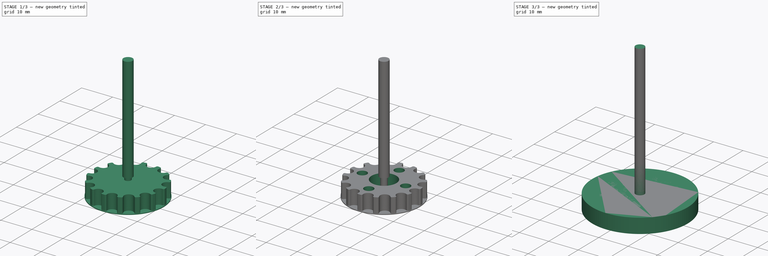
[diagram: build sequence overview — one tinted view per stage of 3, left to right]
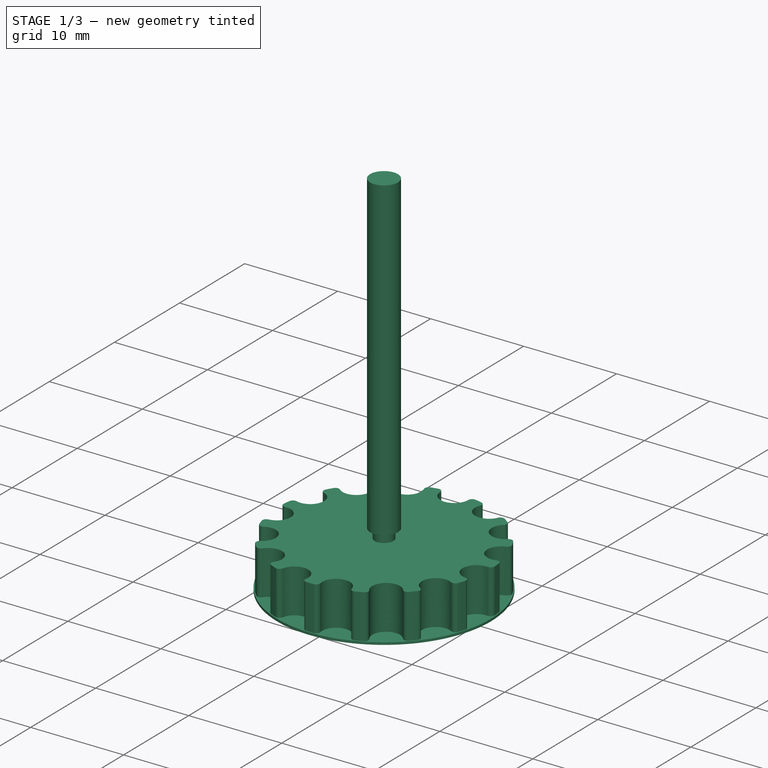
[diagram: stage 1 of 3 — iso view after this stage's code; geometry added in this stage tinted green]
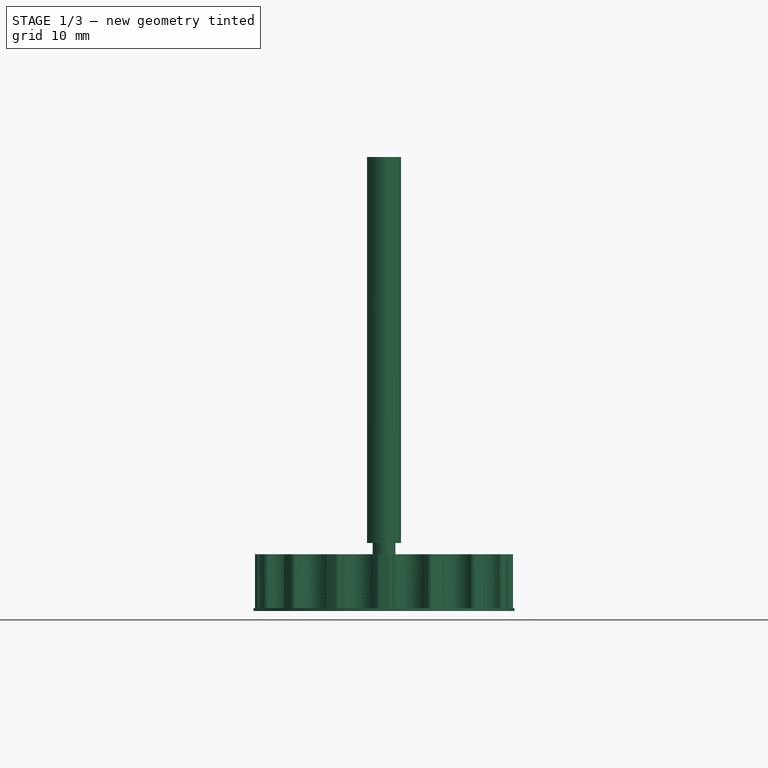
[diagram: stage 1 of 3 — front view after this stage's code; geometry added in this stage tinted green]
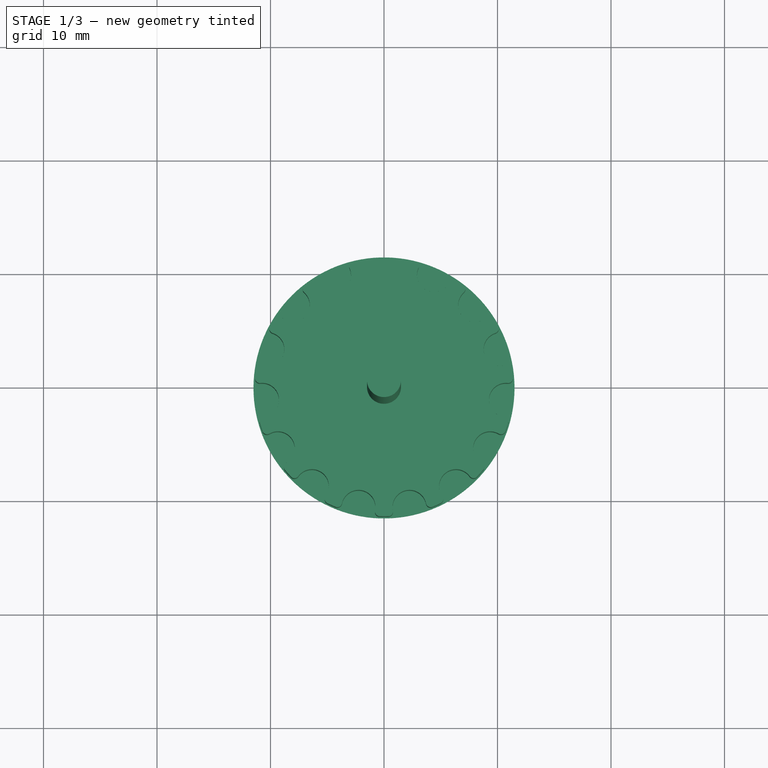
[diagram: stage 1 of 3 — top view after this stage's code; geometry added in this stage tinted green]
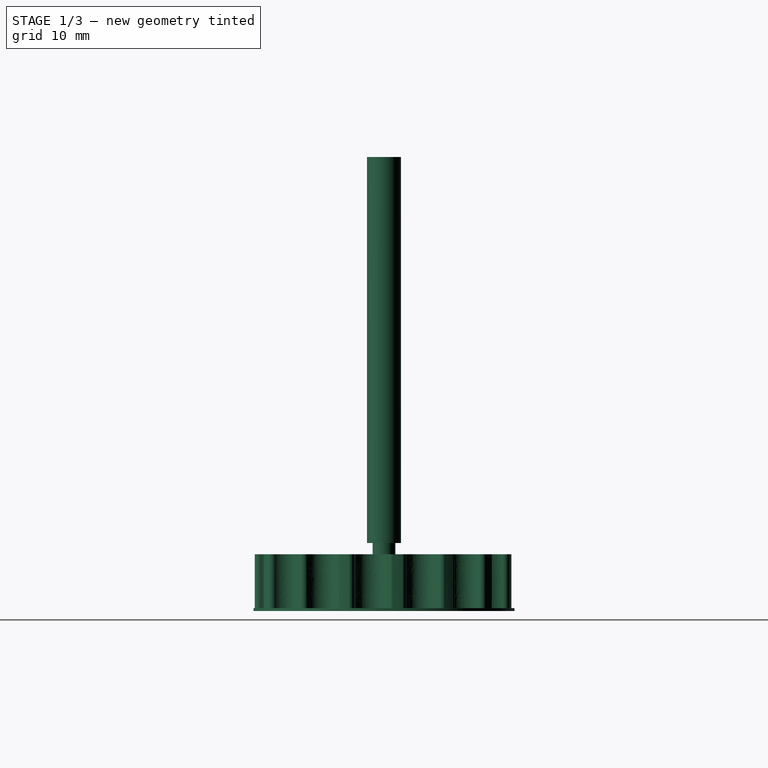
[diagram: stage 1 of 3 — right view after this stage's code; geometry added in this stage tinted green]
FCSTD DOCUMENT  (FreeCAD 0.21R33668 +26 (Git))
Label: hdt5_15t_5mm_pulley
License: All rights reserved
LicenseURL: http://en.wikipedia.org/wiki/All_rights_reserved
objects: Path::FeaturePython×9, Part::FeaturePython×4, Sketcher::SketchObject×3, App::DocumentObjectGroup×3, PartDesign::Pocket×2, PartDesign::FeaturePython×1, PartDesign::Pad×1, PartDesign::Body×1, App::FeaturePython×1
note: 21 computed .brp shape members not serialized (recipe doc carries the construction recipe); baked Part::Feature solids carry a one-line shape summary decoded from their .brp

FEATURE [PartDesign::FeaturePython] TimingGear  # WARN: FeaturePython — macro-defined, semantics opaque (R4)
  AttacherType = Attacher::AttachEngine3D
  h = 2.06
  height = 5
  offset = 0
  pitch = 5
  r0 = 1.49
  r1 = 1.49
  rs = 0.43
  teeth = 15
  type = 5
  u = 0.5715
  version = 1.2.0
FEATURE [Sketcher::SketchObject] Sketch
  FullyConstrained = true
  MapMode = 5
  Placement = pos=(0,0,5) rot=(0,0,1;0rad)
  Support = -> [TimingGear]
  sketch-geometry (1):
    g0: Circle CenterX=0 CenterY=0 CenterZ=0 NormalX=0 NormalY=0 NormalZ=1 AngleXU=0 Radius=4
  constraints (2):
    c: Coincident(g0,g-1)
    c: Diameter(g0) = 8
FEATURE [Sketcher::SketchObject] Sketch001
  FullyConstrained = true
  MapMode = 5
  Placement = pos=(0,0,0) rot=(1,0,0;3.14159rad)
  sketch-geometry (1):
    g0: Circle CenterX=0 CenterY=0 CenterZ=0 NormalX=0 NormalY=0 NormalZ=1 AngleXU=0 Radius=11.5
  constraints (2):
    c: Coincident(g0,g-1)
    c: Diameter(g0) = 23
FEATURE [PartDesign::Pad] Pad  label="Pad_23mm"
  BaseFeature = -> TimingGear
  Direction = (0,0,-1)
  Length = 0.25
  Length2 = 10
  Profile = -> Sketch001
  ReferenceAxis = -> Sketch001 [N_Axis]
  Reversed = true
  Type = 0
FEATURE [Path::FeaturePython] _mm_Endmill  label="3mm Endmill001"  # Path/CAM operation (typed FeaturePython)
  HorizFeed = 7
  HorizRapid = 7
  SpindleDir = 0
  SpindleSpeed = 8000
  Tool = -> ToolBit001
  ToolNumber = 2
  VertFeed = 7
  VertRapid = 7
  expr: HorizRapid = SetupSheet.HorizRapid
  expr: VertRapid = SetupSheet.VertRapid
FEATURE [Part::FeaturePython] ToolBit004  label="2mm Endmill"  # Path/CAM toolbit (typed FeaturePython)
  BitPropertyNames = Chipload | CuttingEdgeHeight | Diameter | Flutes | Length | Material | ShankDiameter | SpindleDirection
  BitShape = C:/Program Files/FreeCAD 0.21/Mod\Path\Tools\Shape\endmill.fcstd
  Chipload = 0
  CuttingEdgeHeight = 6
  Diameter = 2
  File = <path>
  Flutes = 0
  Length = 40
  Material = 0
  ShankDiameter = 3
  ShapeName = endmill
  SpindleDirection = 0
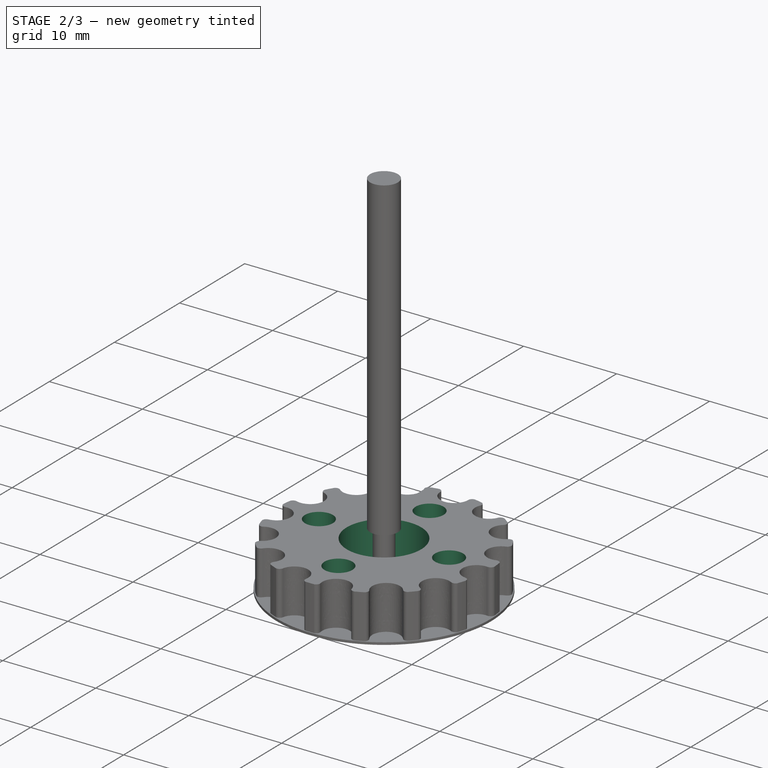
[diagram: stage 2 of 3 — iso view after this stage's code; geometry added in this stage tinted green]
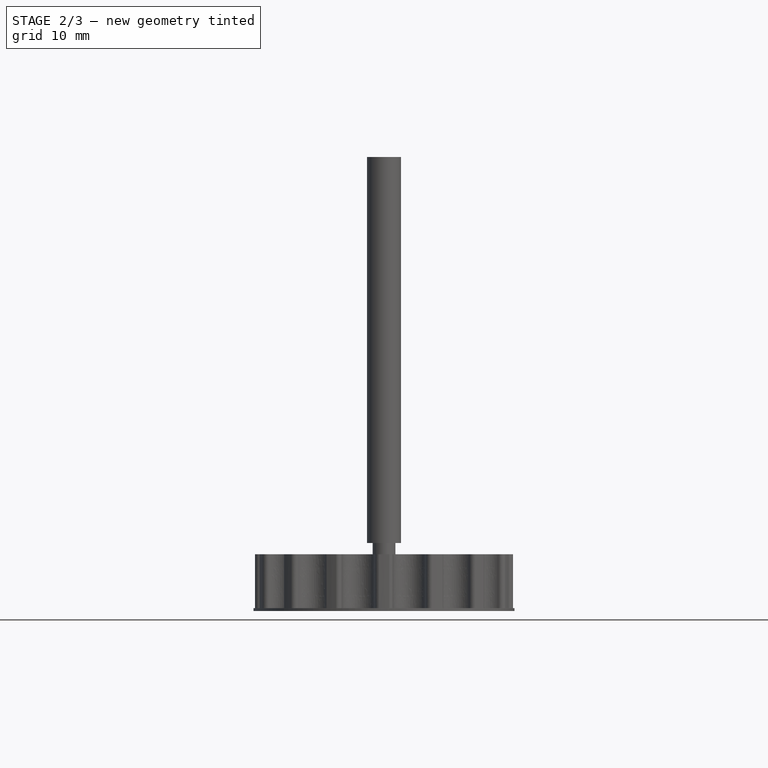
[diagram: stage 2 of 3 — front view after this stage's code; geometry added in this stage tinted green]
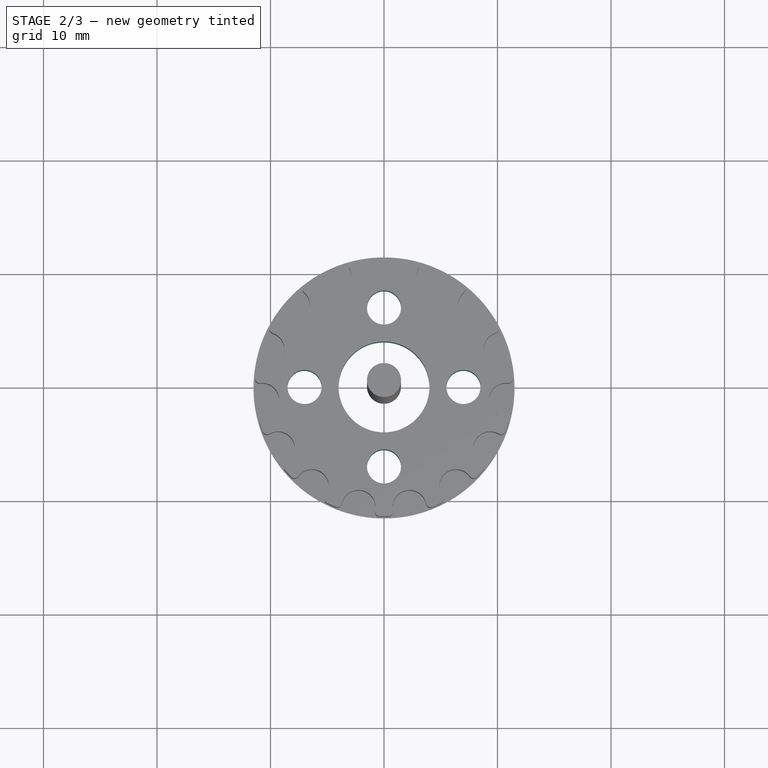
[diagram: stage 2 of 3 — top view after this stage's code; geometry added in this stage tinted green]
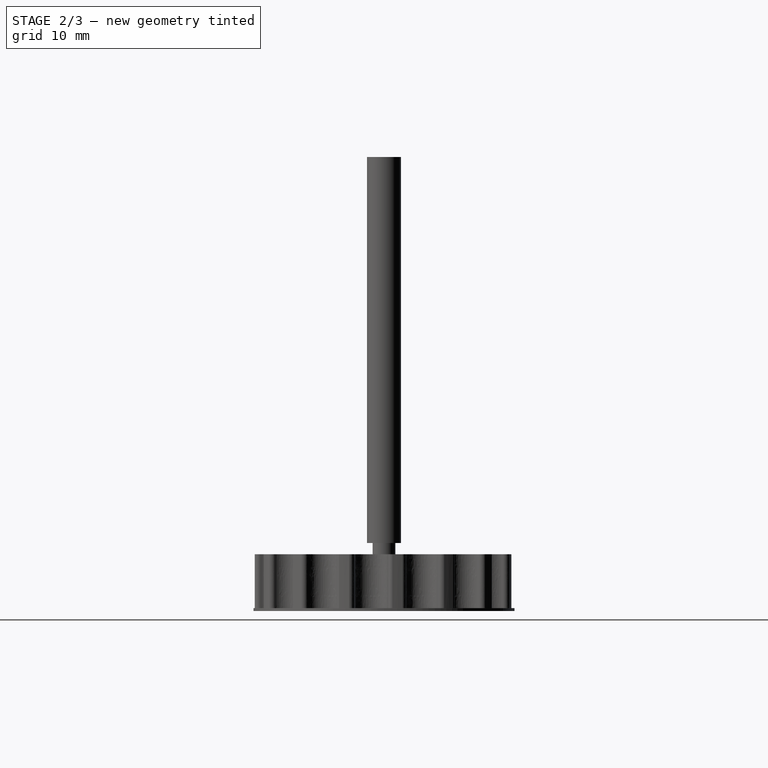
[diagram: stage 2 of 3 — right view after this stage's code; geometry added in this stage tinted green]
FEATURE [PartDesign::Pocket] Pocket  label="Pocket_8mm"
  BaseFeature = -> Pad
  Direction = (0,0,-1)
  Length = 5
  Length2 = 5
  Profile = -> Sketch
  ReferenceAxis = -> Sketch [N_Axis]
  Type = 1
FEATURE [Sketcher::SketchObject] Sketch002
  FullyConstrained = true
  MapMode = 5
  Placement = pos=(0,0,5) rot=(0,0,1;0rad)
  Support = -> [Pocket]
  sketch-geometry (5):
    g0: Circle CenterX=0 CenterY=0 CenterZ=0 NormalX=0 NormalY=0 NormalZ=1 AngleXU=0 Radius=7
    g1: Circle CenterX=-7 CenterY=0 CenterZ=0 NormalX=0 NormalY=0 NormalZ=1 AngleXU=0 Radius=1.5
    g2: Circle CenterX=0 CenterY=7 CenterZ=0 NormalX=0 NormalY=0 NormalZ=1 AngleXU=0 Radius=1.5
    g3: Circle CenterX=7 CenterY=0 CenterZ=0 NormalX=0 NormalY=0 NormalZ=1 AngleXU=0 Radius=1.5
    g4: Circle CenterX=0 CenterY=-7 CenterZ=0 NormalX=0 NormalY=0 NormalZ=1 AngleXU=0 Radius=1.5
  constraints (14):
    c: Coincident(g0,g-1)
    c: Diameter(g0) = 14
    c: PointOnObject(g1,g0)
    c: PointOnObject(g2,g0)
    c: PointOnObject(g3,g0)
    c: PointOnObject(g4,g0)
    c: Horizontal(g0,g1)
    c: Horizontal(g0,g3)
    c: Vertical(g0,g2)
    c: Vertical(g0,g4)
    c: Equal(g1,g2)
    c: Equal(g1,g3)
    c: Equal(g1,g4)
    c: Diameter(g1) = 3
FEATURE [PartDesign::Pocket] Pocket001  label="Pocket001_3mmx4"
  BaseFeature = -> Pocket
  Direction = (0,0,-1)
  Length = 5
  Length2 = 5
  Profile = -> Sketch002
  ReferenceAxis = -> Sketch002 [N_Axis]
  Type = 1
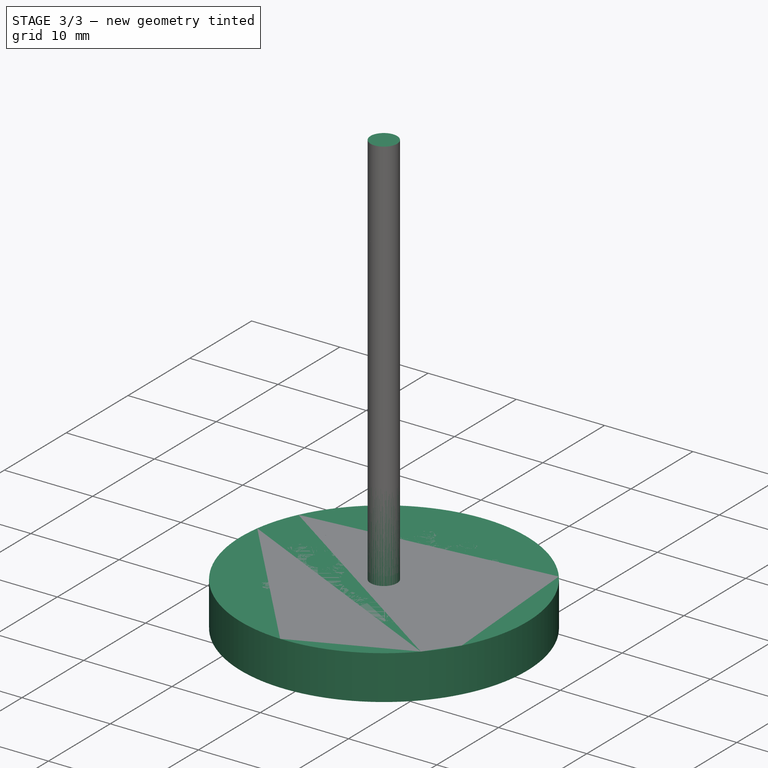
[diagram: stage 3 of 3 — iso view after this stage's code; geometry added in this stage tinted green]
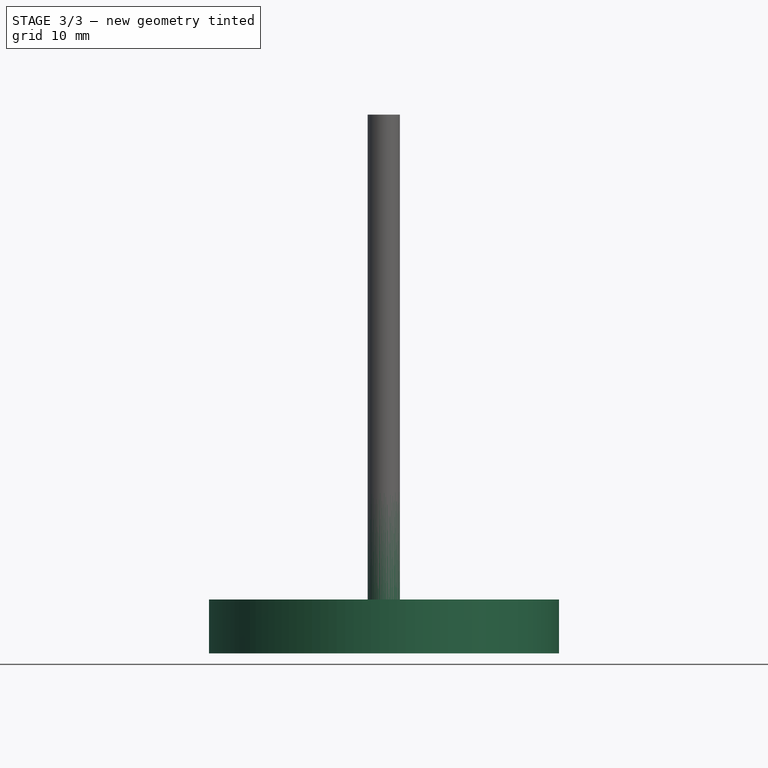
[diagram: stage 3 of 3 — front view after this stage's code; geometry added in this stage tinted green]
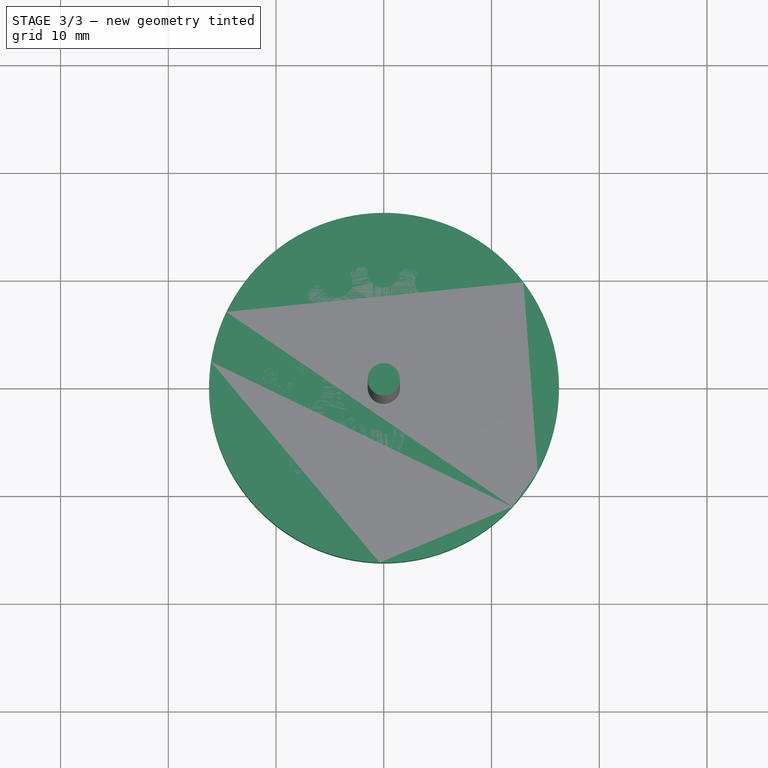
[diagram: stage 3 of 3 — top view after this stage's code; geometry added in this stage tinted green]
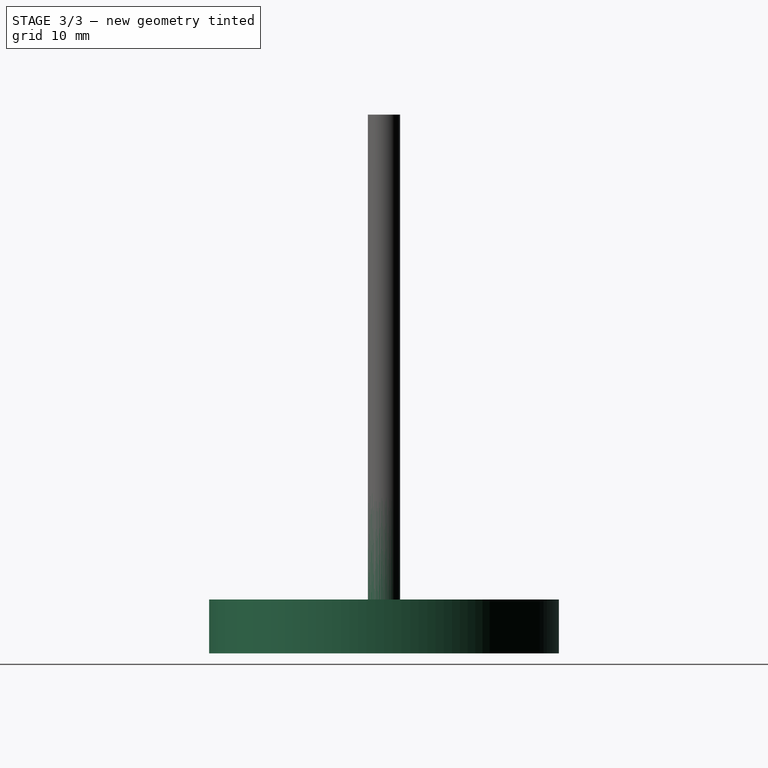
[diagram: stage 3 of 3 — right view after this stage's code; geometry added in this stage tinted green]
FEATURE [PartDesign::Body] Body  label="Pulley"
  Group = -> [TimingGear,Sketch,Sketch001,Pad,Pocket,Sketch002,Pocket001]
  Origin = -> Origin
  Tip = -> Pocket001
FEATURE [App::FeaturePython] SetupSheet  # Path/CAM operation (typed FeaturePython)
  ClearanceHeightExpression = OpStockZMax+SetupSheet.ClearanceHeightOffset
  ClearanceHeightOffset = 5
  CoolantMode = 0
  CoolantModes = None | Flood | Mist
  FinalDepthExpression = OpFinalDepth
  HorizRapid = 7
  SafeHeightExpression = OpStockZMax+SetupSheet.SafeHeightOffset
  SafeHeightOffset = 3
  StartDepthExpression = OpStartDepth
  StepDownExpression = OpToolDiameter
  VertRapid = 7
FEATURE [Part::FeaturePython] Clone  label="Model-Pulley"  # Draft clone (typed FeaturePython)
  AttacherType = Attacher::AttachEngine3D
  Fuse = false
  Objects = -> [Body]
  PathResource = Model
  Scale = (1,1,1)
FEATURE [App::DocumentObjectGroup] Model
  Group = -> [Clone]
FEATURE [Part::FeaturePython] ToolBit001  label="3mm Endmill"  # Path/CAM toolbit (typed FeaturePython)
  BitPropertyNames = Chipload | CuttingEdgeHeight | Diameter | Flutes | Length | Material | ShankDiameter | SpindleDirection
  BitShape = C:/Program Files/FreeCAD 0.21/Mod\Path\Tools\Shape\endmill.fcstd
  Chipload = 0
  CuttingEdgeHeight = 15
  Diameter = 3
  File = <path>
  Flutes = 0
  Length = 50
  Material = 0
  ShankDiameter = 3
  ShapeName = endmill
  SpindleDirection = 0
FEATURE [Path::FeaturePython] _mm_Endmill005  label="2mm Endmill001"  # Path/CAM operation (typed FeaturePython)
  HorizFeed = 7
  HorizRapid = 7
  SpindleDir = 0
  SpindleSpeed = 8000
  Tool = -> ToolBit004
  ToolNumber = 5
  VertFeed = 7
  VertRapid = 7
  expr: HorizRapid = SetupSheet.HorizRapid
  expr: VertRapid = SetupSheet.VertRapid
FEATURE [App::DocumentObjectGroup] Tools
  Group = -> [_mm_Endmill,_mm_Endmill005]
FEATURE [Path::FeaturePython] Adaptive  label="Adaptive_23mm"  # Path/CAM operation (typed FeaturePython)
  Active = true
  Base = -> [Clone]
  ClearanceHeight = 10
  CoolantMode = 0
  CycleTime = 00:05:48
  ExtensionCorners = true
  ExtensionLengthDefault = 1.5
  FinalDepth = 0.25
  FinishDepth = 0
  FinishingProfile = true
  ForceInsideOut = false
  HelixAngle = 5
  HelixConeAngle = 0
  HelixDiameterLimit = 0
  KeepToolDownRatio = 3
  LiftDistance = 0
  OpFinalDepth = 0.25
  OpStartDepth = 5
  OpStockZMax = 5
  OpStockZMin = 0
  OpToolDiameter = 3
  OperationType = 1
  SafeHeight = 8
  Side = 0
  StartDepth = 5
  StepDown = 3
  StepOver = 30
  StockToLeave = 0
  StopProcessing = false
  Stopped = false
  Tolerance = 0.1
  ToolController = -> _mm_Endmill
  UseHelixArcs = false
  UseOutline = false
  expr: ClearanceHeight = OpStockZMax + SetupSheet.ClearanceHeightOffset
  expr: ExtensionLengthDefault = OpToolDiameter / 2
  expr: FinalDepth = OpFinalDepth
  expr: SafeHeight = OpStockZMax + SetupSheet.SafeHeightOffset
  expr: StartDepth = OpStartDepth
  expr: StepDown = OpToolDiameter
FEATURE [Part::FeaturePython] Stock001  # WARN: FeaturePython — macro-defined, semantics opaque (R4)
  Height = 5
  Placement = pos=(0.0207144,0,0) rot=(0,0,1;0rad)
  Radius = 16.24
  StockType = CreateCylinder
FEATURE [Path::FeaturePython] Adaptive001  label="Adaptive001_8mm"  # Path/CAM operation (typed FeaturePython)
  Active = true
  Base = -> [Clone]
  ClearanceHeight = 10
  CoolantMode = 0
  CycleTime = 00:00:38
  ExtensionCorners = true
  ExtensionLengthDefault = 1.5
  FinalDepth = 0
  FinishDepth = 0
  FinishingProfile = true
  ForceInsideOut = true
  HelixAngle = 5
  HelixConeAngle = 0
  HelixDiameterLimit = 0
  KeepToolDownRatio = 3
  LiftDistance = 0
  OpFinalDepth = 0
  OpStartDepth = 5
  OpStockZMax = 5
  OpStockZMin = 0
  OpToolDiameter = 3
  OperationType = 0
  SafeHeight = 8
  Side = 1
  StartDepth = 5
  StepDown = 3
  StepOver = 20
  StockToLeave = 0
  StopProcessing = false
  Stopped = false
  Tolerance = 0.1
  ToolController = -> _mm_Endmill
  UseHelixArcs = false
  UseOutline = true
  expr: ClearanceHeight = OpStockZMax + SetupSheet.ClearanceHeightOffset
  expr: ExtensionLengthDefault = OpToolDiameter / 2
  expr: FinalDepth = OpFinalDepth
  expr: SafeHeight = OpStockZMax + SetupSheet.SafeHeightOffset
  expr: StartDepth = OpStartDepth
  expr: StepDown = OpToolDiameter
FEATURE [Path::FeaturePython] Adaptive002  label="Adaptive002_3mm"  # Path/CAM operation (typed FeaturePython)
  Active = true
  Base = -> [Clone]
  ClearanceHeight = 10
  CoolantMode = 0
  CycleTime = 00:01:17
  ExtensionCorners = true
  ExtensionLengthDefault = 1
  FinalDepth = 0
  FinishDepth = 0
  FinishingProfile = true
  ForceInsideOut = false
  HelixAngle = 5
  HelixConeAngle = 0
  HelixDiameterLimit = 0.5
  KeepToolDownRatio = 3
  LiftDistance = 0
  OpFinalDepth = 0
  OpStartDepth = 5
  OpStockZMax = 5
  OpStockZMin = 0
  OpToolDiameter = 2
  OperationType = 0
  SafeHeight = 8
  Side = 1
  StartDepth = 5
  StepDown = 4
  StepOver = 20
  StockToLeave = 0
  StopProcessing = false
  Stopped = false
  Tolerance = 0.1
  ToolController = -> _mm_Endmill005
  UseHelixArcs = false
  UseOutline = false
  expr: ClearanceHeight = OpStockZMax + SetupSheet.ClearanceHeightOffset
  expr: ExtensionLengthDefault = OpToolDiameter / 2
  expr: FinalDepth = OpFinalDepth
  expr: SafeHeight = OpStockZMax + SetupSheet.SafeHeightOffset
  expr: StartDepth = OpStartDepth
  expr: StepDown = OpToolDiameter * 2
FEATURE [Path::FeaturePython] Adaptive003  label="Adaptive003_pulle"  # Path/CAM operation (typed FeaturePython)
  Active = true
  Base = -> [Clone]
  ClearanceHeight = 10
  CoolantMode = 0
  CycleTime = 00:02:56
  ExtensionCorners = true
  ExtensionLengthDefault = 1
  FinalDepth = 0.25
  FinishDepth = 0
  FinishingProfile = false
  ForceInsideOut = false
  HelixAngle = 5
  HelixConeAngle = 0
  HelixDiameterLimit = 0
  KeepToolDownRatio = 3
  LiftDistance = 0
  OpFinalDepth = 5
  OpStartDepth = 11
  OpStockZMax = 5
  OpStockZMin = 0
  OpToolDiameter = 2
  OperationType = 1
  SafeHeight = 8
  Side = 0
  StartDepth = 5
  StepDown = 6
  StepOver = 30
  StockToLeave = 0.05
  StopProcessing = false
  Stopped = false
  Tolerance = 0.1
  ToolController = -> _mm_Endmill005
  UseHelixArcs = false
  UseOutline = true
  expr: ClearanceHeight = OpStockZMax + SetupSheet.ClearanceHeightOffset
  expr: ExtensionLengthDefault = OpToolDiameter / 2
  expr: SafeHeight = OpStockZMax + SetupSheet.SafeHeightOffset
  expr: StepDown = OpToolDiameter * 3
FEATURE [Path::FeaturePython] Profile  # Path/CAM operation (typed FeaturePython)
  Active = true
  AreaParams:
    Tolerance = 1e-07
    FitArcs = True
    Simplify = False
    CleanDistance = 0.0
    Accuracy = 0.01
    Unit = 1.0
    MinArcPoints = 4
    MaxArcPoints = 100
    ClipperScale = 10000000.0
    Fill = 0
    Coplanar = 0
    Reorient = True
    Outline = False
    Explode = False
    OpenMode = 0
    Deflection = 0.01
    SubjectFill = 0
    ClipFill = 0
    Offset = 1.0
    ExtraPass = 0
    Stepover = 0.0
    LastStepover = 0.0
    JoinType = 0
    EndType = 0
    MiterLimit = 2.0
    RoundPrecision = 0.0
    PocketMode = 0
    ToolRadius = 1.0
    PocketExtraOffset = 0.0
    PocketStepover = 0.0
    PocketLastStepover = 0.0
    FromCenter = False
    Angle = 45.0
    AngleShift = 0.0
    Shift = 0.0
    Thicken = False
    SectionCount = -1
    Stepdown = 1.0
    SectionOffset = 0.0
    SectionTolerance = 1e-07
    SectionMode = 2
    Project = False
  Base = -> [Clone]
  ClearanceHeight = 10
  CoolantMode = 0
  CycleTime = 00:00:16
  Direction = 0
  FinalDepth = 0.25
  HandleMultipleFeatures = 0
  JoinType = 0
  MiterLimit = 0.1
  OffsetExtra = 0
  OpFinalDepth = 5
  OpStartDepth = 11
  OpStockZMax = 5
  OpStockZMin = 0
  OpToolDiameter = 2
  PathParams = {'orientation': 1, 'feedrate': 7.0, 'feedrate_v': 7.0, 'verbose': True, 'resume_height': 8.0, 'retraction': 10.0, 'return_end': True, 'preamble': False}
  SafeHeight = 8
  Side = 0
  SplitArcs = false
  StartDepth = 5
  StartPoint = (0,0,0)
  StepDown = 6
  ToolController = -> _mm_Endmill005
  UseComp = true
  UseStartPoint = false
  processCircles = false
  processHoles = false
  processPerimeter = true
  expr: ClearanceHeight = OpStockZMax + SetupSheet.ClearanceHeightOffset
  expr: SafeHeight = OpStockZMax + SetupSheet.SafeHeightOffset
  expr: StepDown = OpToolDiameter * 3
FEATURE [Path::FeaturePython] Adaptive004  # Path/CAM operation (typed FeaturePython)
  Active = true
  Base = -> [Clone]
  ClearanceHeight = 10
  CoolantMode = 0
  CycleTime = 00:02:46
  ExtensionCorners = true
  ExtensionLengthDefault = 1
  FinalDepth = 0
  FinishDepth = 0
  FinishingProfile = true
  ForceInsideOut = false
  HelixAngle = 5
  HelixConeAngle = 0
  HelixDiameterLimit = 1
  KeepToolDownRatio = 3
  LiftDistance = 0
  OpFinalDepth = 0
  OpStartDepth = 5
  OpStockZMax = 5
  OpStockZMin = 0
  OpToolDiameter = 2
  OperationType = 1
  SafeHeight = 8
  Side = 0
  StartDepth = 5
  StepDown = 6
  StepOver = 25
  StockToLeave = 0
  StopProcessing = false
  Stopped = false
  Tolerance = 0.1
  ToolController = -> _mm_Endmill005
  UseHelixArcs = false
  UseOutline = true
  expr: ClearanceHeight = OpStockZMax + SetupSheet.ClearanceHeightOffset
  expr: ExtensionLengthDefault = OpToolDiameter / 2
  expr: FinalDepth = OpFinalDepth
  expr: SafeHeight = OpStockZMax + SetupSheet.SafeHeightOffset
  expr: StartDepth = OpStartDepth
  expr: StepDown = OpToolDiameter * 3
FEATURE [App::DocumentObjectGroup] Operations
  Group = -> [Adaptive001,Adaptive,Adaptive002,Adaptive003,Profile,Adaptive004]
FEATURE [Path::FeaturePython] Job  # Path/CAM operation (typed FeaturePython)
  CycleTime = 00:13:41
  Fixtures = G54
  GeometryTolerance = 0.01
  JobType = 0
  LastPostProcessDate = 2024-02-17 15:23:04.253018
  LastPostProcessOutput = <userpath>\Desktop\CNC\FC_CNC_Template\Pulley\hdt5_12t_5mm_pulley.nc
  Model = -> Model
  Operations = -> Operations
  OrderOutputBy = 0
  PostProcessor = 10
  PostProcessorArgs = --bcnc --no-translate_drill
  PostProcessorOutputFile = <userpath>/Desktop/CNC/FC_CNC_Template/Pulley/hdt5_12t_5mm_pulley.nc
  SetupSheet = -> SetupSheet
  SplitOutput = false
  Stock = -> Stock001
  Tools = -> Tools
note: 2 file-system paths scrubbed to <path> (originals preserved in the JSON sidecar)
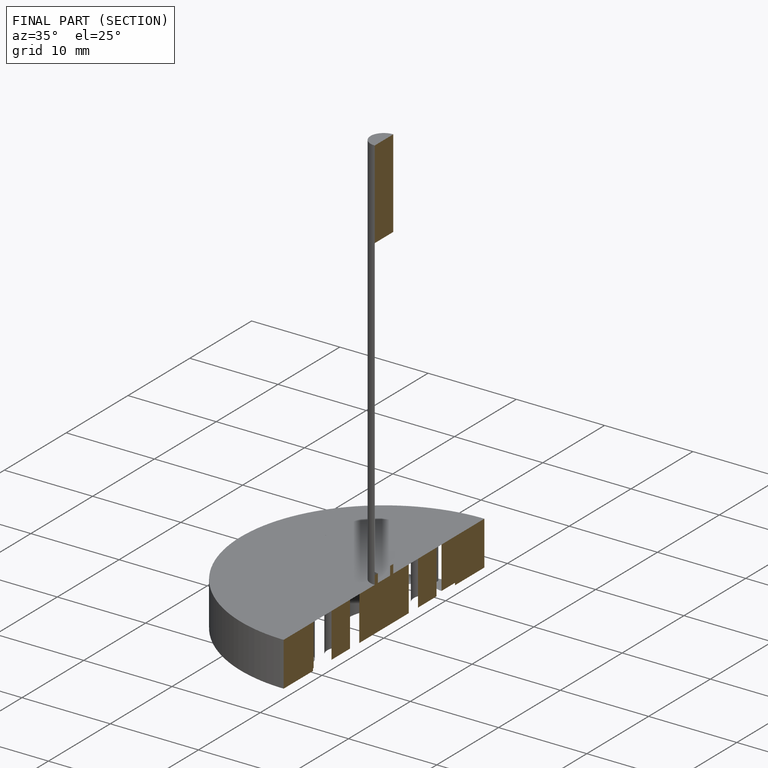
[diagram: finished part — half-section view (interior)]
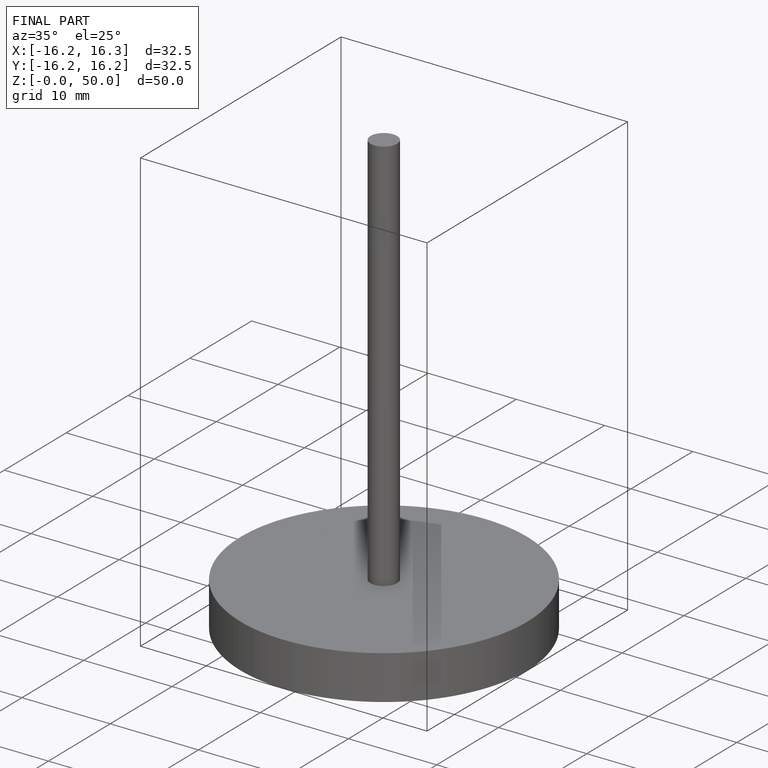
[diagram: finished part — iso view with bounding-box wireframe]
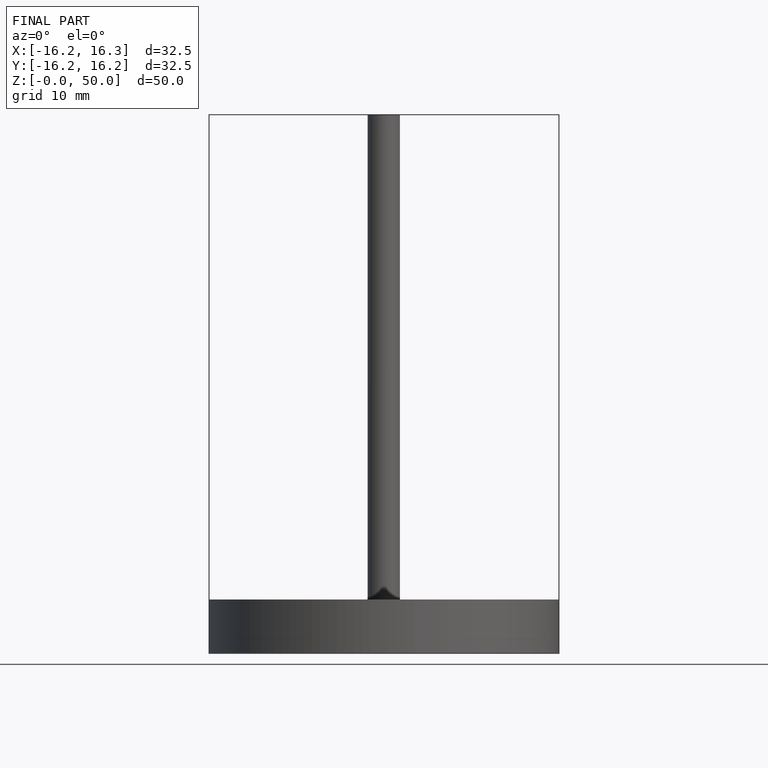
[diagram: finished part — front view with bounding-box wireframe]
